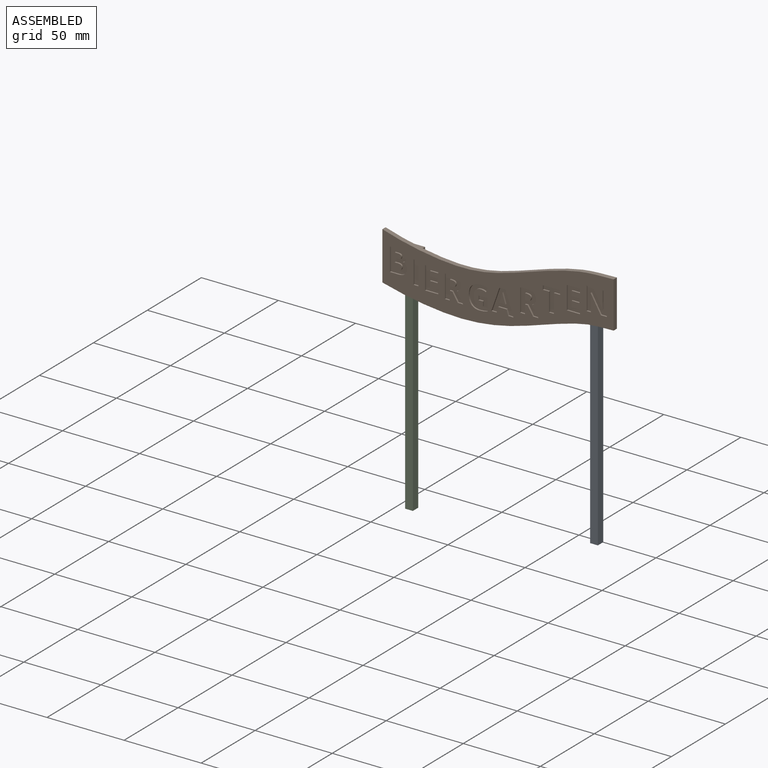
[diagram: assembled view]
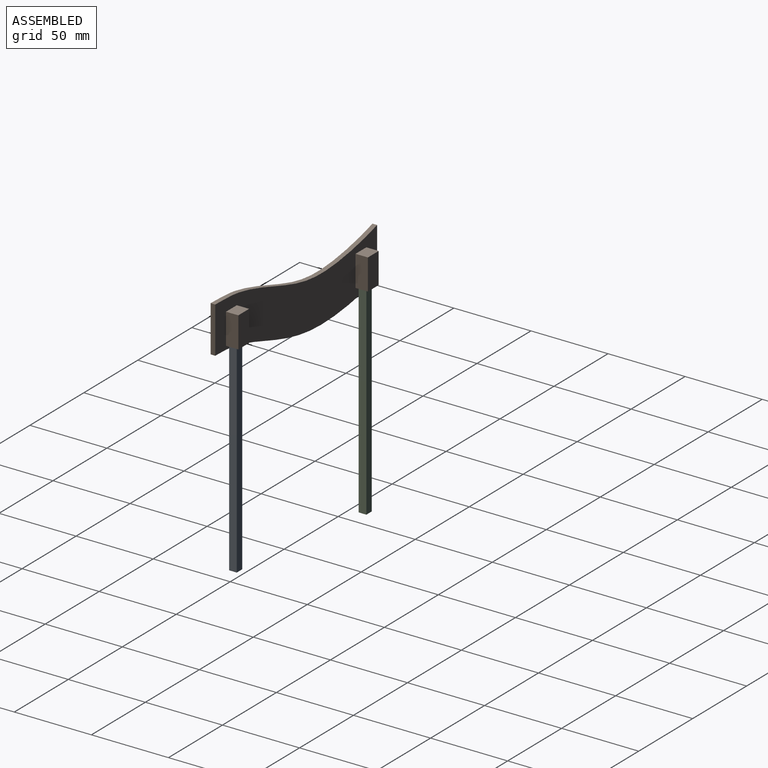
[diagram: assembled view, second angle]
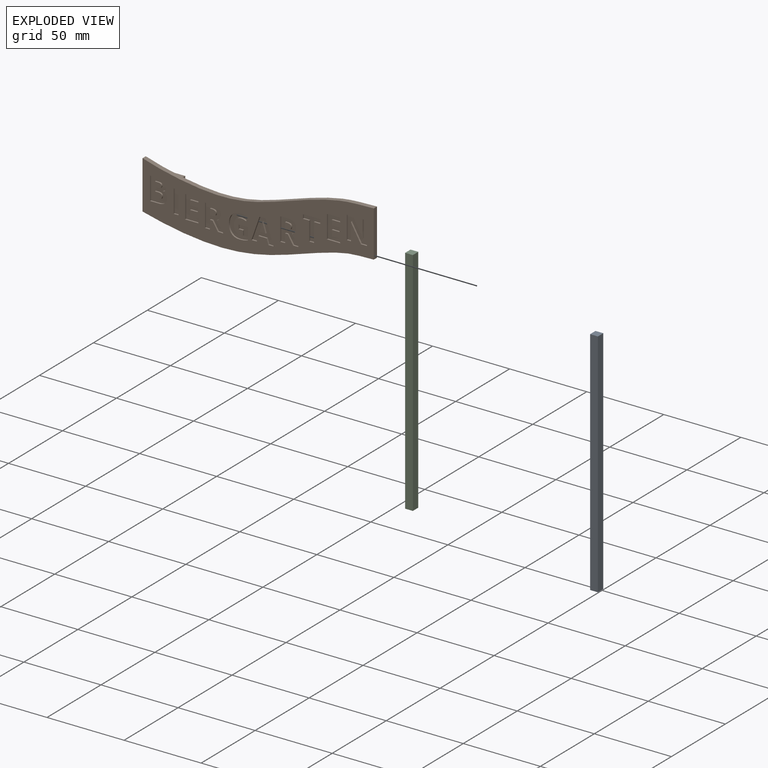
[diagram: exploded view]
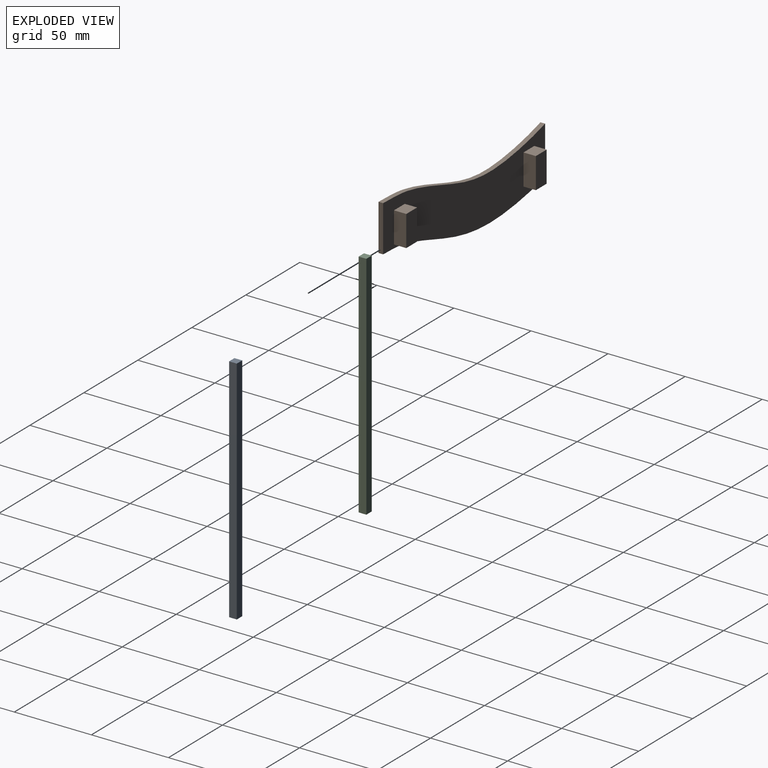
[diagram: exploded view, second angle]
ASSEMBLY  parts=3 mates=2
PART A: 6 faces, bbox 5x5x150 mm
  f0: plane 150x5mm, normal (0,1,0), area 750mm2, adj f1,f3,f4,f5
  f1: plane 150x5mm, normal (-1,0,0), area 750mm2, adj f0,f2,f4,f5
  f2: plane 150x5mm, normal (0,-1,0), area 750mm2, adj f1,f3,f4,f5
  f3: plane 150x5mm, normal (1,0,0), area 750mm2, adj f0,f2,f4,f5
  f4: plane 5x5mm, normal (0,0,1), area 25mm2, adj f0,f1,f2,f3
  f5: plane 5x5mm, normal (0,0,-1), area 25mm2, adj f0,f1,f2,f3
PART B: 183 faces, bbox 150x11x49.4 mm
  f0: plane 10x8mm, normal (0,0,-1), area 49.7mm2, adj f7,f168,f169,f170,f180,f181,f182
  f1: plane 10x8mm, normal (0,0,-1), area 49.7mm2, adj f7,f172,f173,f174,f176,f177,f178
  f2: plane 150x49.44mm, normal (0,-1,0), area 3565.7mm2, adj f3,f4,f5,f6,f8,f9,f10,f11
  f3: extruded ~150x19.32mm, area 460mm2, adj f2,f4,f6,f7
  f4: plane 31.26x3mm, normal (-1,0,0), area 93.8mm2, adj f2,f3,f5,f7
  f5: extruded ~150x19.32mm, area 458.9mm2, adj f2,f4,f6,f7
  f6: plane 30.02x3mm, normal (1,0,0), area 90.1mm2, adj f2,f3,f5,f7
  f7: plane 150x49.44mm, normal (0,1,0), area 4389mm2, adj f0,f1,f3,f4,f5,f6,f167,f168
  f8: plane 5.9x1mm, normal (0,0,-1), area 5.9mm2, adj f2,f9,f26,f27
  f9: plane 2.63x1mm, normal (1,0,0), area 2.6mm2, adj f2,f8,f10,f27
  f10: plane 2.82x1mm, normal (0,0,1), area 2.8mm2, adj f2,f9,f11,f27
  f11: plane 3.1x1mm, normal (1,0,0), area 3.1mm2, adj f2,f10,f12,f27
  f12: extruded ~2.01x1mm, area 2mm2, adj f2,f11,f13,f27
  f13: extruded ~2.88x1.28mm, area 3.3mm2, adj f2,f12,f14,f27
  f14: extruded ~3.7x1mm, area 3.9mm2, adj f2,f13,f15,f27
  f15: extruded ~3.69x1.23mm, area 4mm2, adj f2,f14,f16,f27
  f16: extruded ~3.27x1.37mm, area 3.7mm2, adj f2,f15,f17,f27
  f17: extruded ~3.39x1mm, area 3.5mm2, adj f2,f16,f18,f27
  f18: plane 2.52x1.05mm, normal (-0.92,0,0.38), area 2.7mm2, adj f2,f17,f19,f27
  f19: extruded ~4.42x1mm, area 4.5mm2, adj f2,f18,f20,f27
  f20: extruded ~5.71x2.01mm, area 6.2mm2, adj f2,f19,f21,f27
  f21: extruded ~5.61x2.06mm, area 6.1mm2, adj f2,f20,f22,f27
  f22: extruded ~5.68x1.78mm, area 6.1mm2, adj f2,f21,f23,f27
  f23: extruded ~5.14x1.98mm, area 5.7mm2, adj f2,f22,f24,f27
  f24: extruded ~2.59x1mm, area 2.6mm2, adj f2,f23,f25,f27
  f25: extruded ~2.7x1mm, area 2.8mm2, adj f2,f24,f26,f27
  f26: plane 7.71x1mm, normal (-1,0,0), area 7.7mm2, adj f2,f8,f25,f27
  f27: plane 15.29x12.21mm, normal (0,-1,0), area 107.8mm2, adj f8,f9,f10,f11,f12,f13,f14,f15
  f28: plane 5.71x1mm, normal (-1,0,0), area 5.7mm2, adj f2,f29,f46,f47
  f29: plane 1.68x1mm, normal (0,0,1), area 1.7mm2, adj f2,f28,f30,f47
  f30: plane 5.71x3.55mm, normal (0.85,0,0.53), area 6.7mm2, adj f2,f29,f31,f47
  f31: plane 3.5x1mm, normal (0,0,1), area 3.5mm2, adj f2,f30,f32,f47
  f32: extruded ~6.48x4.38mm, area 7.8mm2, adj f2,f31,f33,f47
  f33: extruded ~2.05x1.6mm, area 2.6mm2, adj f2,f32,f34,f47
  f34: extruded ~2.33x1mm, area 2.5mm2, adj f2,f33,f35,f47
  f35: extruded ~3.35x1.45mm, area 3.8mm2, adj f2,f34,f36,f47
  f36: extruded ~4.49x1.1mm, area 4.7mm2, adj f2,f35,f37,f47
  f37: plane 4.33x1mm, normal (0,0,-1), area 4.3mm2, adj f2,f36,f38,f47
  f38: plane 14.87x1mm, normal (1,0,0), area 14.9mm2, adj f2,f37,f46,f47
  f39: plane 1.02x1mm, normal (0,0,-1), area 1mm2, adj f40,f45,f47,f48
  f40: plane 4.02x1mm, normal (-1,0,0), area 4mm2, adj f39,f41,f47,f48
  f41: plane 1x0.96mm, normal (0,0,1), area 1mm2, adj f40,f42,f47,f48
  f42: extruded ~2.25x1mm, area 2.3mm2, adj f41,f43,f47,f48
  f43: extruded ~1.51x1mm, area 1.8mm2, adj f42,f44,f47,f48
  f44: extruded ~1.57x1mm, area 1.8mm2, adj f43,f45,f47,f48
  f45: extruded ~2.21x1mm, area 2.3mm2, adj f39,f44,f47,f48
  f46: plane 3.15x1mm, normal (0,0,1), area 3.2mm2, adj f2,f28,f38,f47
  f47: plane 14.87x11.88mm, normal (0,-1,0), area 108mm2, adj f28,f29,f30,f31,f32,f33,f34,f35
  f48: plane 4.02x3.94mm, normal (0,-1,0), area 14mm2, adj f39,f40,f41,f42,f43,f44,f45
  f49: plane 8.56x1mm, normal (0,0,1), area 8.6mm2, adj f2,f50,f60,f61
  f50: plane 2.6x1mm, normal (-1,0,0), area 2.6mm2, adj f2,f49,f51,f61
  f51: plane 5.41x1mm, normal (0,0,-1), area 5.4mm2, adj f2,f50,f52,f61
  f52: plane 3.83x1mm, normal (-1,0,0), area 3.8mm2, adj f2,f51,f53,f61
  f53: plane 5.04x1mm, normal (0,0,1), area 5mm2, adj f2,f52,f54,f61
  f54: plane 2.58x1mm, normal (-1,0,0), area 2.6mm2, adj f2,f53,f55,f61
  f55: plane 5.04x1mm, normal (0,0,-1), area 5mm2, adj f2,f54,f56,f61
  f56: plane 3.27x1mm, normal (-1,0,0), area 3.3mm2, adj f2,f55,f57,f61
  f57: plane 5.41x1mm, normal (0,0,1), area 5.4mm2, adj f2,f56,f58,f61
  f58: plane 2.58x1mm, normal (-1,0,0), area 2.6mm2, adj f2,f57,f59,f61
  f59: plane 8.56x1mm, normal (0,0,-1), area 8.6mm2, adj f2,f58,f60,f61
  f60: plane 14.87x1mm, normal (1,0,0), area 14.9mm2, adj f2,f49,f59,f61
  f61: plane 14.87x8.56mm, normal (0,-1,0), area 88mm2, adj f49,f50,f51,f52,f53,f54,f55,f56
  f62: plane 14.87x1mm, normal (1,0,0), area 14.9mm2, adj f2,f63,f65,f66
  f63: plane 3.15x1mm, normal (0,0,1), area 3.2mm2, adj f2,f62,f64,f66
  f64: plane 14.87x1mm, normal (-1,0,0), area 14.9mm2, adj f2,f63,f65,f66
  f65: plane 3.15x1mm, normal (0,0,-1), area 3.2mm2, adj f2,f62,f64,f66
  f66: plane 14.87x3.15mm, normal (0,-1,0), area 46.9mm2, adj f62,f63,f64,f65
  f67: plane 3.88x1mm, normal (-1,0,0), area 3.9mm2, adj f68,f91,f92,f165
  f68: plane 1.95x1mm, normal (0,0,1), area 2mm2, adj f67,f69,f92,f165
  f69: extruded ~2.64x1.85mm, area 3.7mm2, adj f68,f70,f92,f165
  f70: extruded ~1.53x1mm, area 1.7mm2, adj f69,f71,f92,f165
  f71: extruded ~1.92x1mm, area 2mm2, adj f70,f91,f92,f165
  f72: plane 1.83x1mm, normal (0,0,-1), area 1.8mm2, adj f73,f89,f92,f93
  f73: plane 3.31x1mm, normal (-1,0,0), area 3.3mm2, adj f72,f74,f92,f93
  f74: plane 1.66x1mm, normal (0,0,1), area 1.7mm2, adj f73,f75,f92,f93
  f75: extruded ~1.98x1mm, area 2mm2, adj f74,f76,f92,f93
  f76: extruded ~1.23x1mm, area 1.4mm2, adj f75,f77,f92,f93
  f77: extruded ~1.31x1mm, area 1.5mm2, adj f76,f89,f92,f93
  f78: plane 4.63x1mm, normal (0,0,-1), area 4.6mm2, adj f2,f79,f90,f92
  f79: plane 14.87x1mm, normal (1,0,0), area 14.9mm2, adj f2,f78,f80,f92
  f80: plane 5.56x1mm, normal (0,0,1), area 5.6mm2, adj f2,f79,f81,f92
  f81: extruded ~3.99x1.14mm, area 4.2mm2, adj f2,f80,f82,f92
  f82: extruded ~3.17x1.47mm, area 3.6mm2, adj f2,f81,f83,f92
  f83: extruded ~2.3x1mm, area 2.4mm2, adj f2,f82,f84,f92
  f84: extruded ~2.04x1.18mm, area 2.4mm2, adj f2,f83,f85,f92
  f85: plane 1x0.1mm, normal (-1,0,0), area 0.1mm2, adj f2,f84,f86,f92
  f86: extruded ~1.66x1.03mm, area 2mm2, adj f2,f85,f87,f92
  f87: extruded ~2.19x1mm, area 2.3mm2, adj f2,f86,f88,f92
  f88: extruded ~2.86x1.43mm, area 3.4mm2, adj f2,f87,f90,f92
  f89: extruded ~1.86x1mm, area 1.9mm2, adj f72,f77,f92,f93
  f90: extruded ~4.59x1mm, area 4.7mm2, adj f2,f78,f88,f92
  f91: plane 2.05x1mm, normal (0,0,-1), area 2.1mm2, adj f67,f71,f92,f165
  f92: plane 14.87x11.03mm, normal (0,-1,0), area 120.6mm2, adj f67,f68,f69,f70,f71,f72,f73,f74
  f93: plane 4.26x3.31mm, normal (0,-1,0), area 12.8mm2, adj f72,f73,f74,f75,f76,f77,f89
  f94: extruded ~5.44x1.68mm, area 5.7mm2, adj f95,f105,f106,f166
  f95: plane 3.87x1mm, normal (0,0,-1), area 3.9mm2, adj f94,f96,f106,f166
  f96: extruded ~6.44x1.92mm, area 6.7mm2, adj f95,f105,f106,f166
  f97: plane 3.54x1.08mm, normal (0.96,0,0.29), area 3.7mm2, adj f2,f98,f104,f106
  f98: plane 3.4x1mm, normal (0,0,1), area 3.4mm2, adj f2,f97,f99,f106
  f99: plane 14.94x5.27mm, normal (-0.94,0,-0.33), area 15.8mm2, adj f2,f98,f100,f106
  f100: plane 3.85x1mm, normal (0,0,-1), area 3.9mm2, adj f2,f99,f101,f106
  f101: plane 14.94x5.25mm, normal (0.94,0,-0.33), area 15.8mm2, adj f2,f100,f102,f106
  f102: plane 3.4x1mm, normal (0,0,1), area 3.4mm2, adj f2,f101,f103,f106
  f103: plane 3.54x1.08mm, normal (-0.96,0,0.29), area 3.7mm2, adj f2,f102,f104,f106
  f104: plane 5.42x1mm, normal (0,0,1), area 5.4mm2, adj f2,f97,f103,f106
  f105: extruded ~1x1mm, area 1mm2, adj f94,f96,f106,f166
  f106: plane 14.94x14.38mm, normal (0,-1,0), area 100.9mm2, adj f94,f95,f96,f97,f98,f99,f100,f101
  f107: plane 5.71x1mm, normal (-1,0,0), area 5.7mm2, adj f2,f108,f125,f126
  f108: plane 1.68x1mm, normal (0,0,1), area 1.7mm2, adj f2,f107,f109,f126
  f109: plane 5.71x3.55mm, normal (0.85,0,0.53), area 6.7mm2, adj f2,f108,f110,f126
  f110: plane 3.5x1mm, normal (0,0,1), area 3.5mm2, adj f2,f109,f111,f126
  f111: extruded ~6.48x4.38mm, area 7.8mm2, adj f2,f110,f112,f126
  f112: extruded ~2.05x1.6mm, area 2.6mm2, adj f2,f111,f113,f126
  f113: extruded ~2.33x1mm, area 2.5mm2, adj f2,f112,f114,f126
  f114: extruded ~3.35x1.45mm, area 3.8mm2, adj f2,f113,f115,f126
  f115: extruded ~4.49x1.1mm, area 4.7mm2, adj f2,f114,f116,f126
  f116: plane 4.33x1mm, normal (0,0,-1), area 4.3mm2, adj f2,f115,f117,f126
  f117: plane 14.87x1mm, normal (1,0,0), area 14.9mm2, adj f2,f116,f125,f126
  f118: plane 1.02x1mm, normal (0,0,-1), area 1mm2, adj f119,f124,f126,f127
  f119: plane 4.02x1mm, normal (-1,0,0), area 4mm2, adj f118,f120,f126,f127
  f120: plane 1x0.96mm, normal (0,0,1), area 1mm2, adj f119,f121,f126,f127
  f121: extruded ~2.25x1mm, area 2.3mm2, adj f120,f122,f126,f127
  f122: extruded ~1.51x1mm, area 1.8mm2, adj f121,f123,f126,f127
  f123: extruded ~1.57x1mm, area 1.8mm2, adj f122,f124,f126,f127
  f124: extruded ~2.21x1mm, area 2.3mm2, adj f118,f123,f126,f127
  f125: plane 3.15x1mm, normal (0,0,1), area 3.2mm2, adj f2,f107,f117,f126
  f126: plane 14.87x11.88mm, normal (0,-1,0), area 108mm2, adj f107,f108,f109,f110,f111,f112,f113,f114
  f127: plane 4.02x3.94mm, normal (0,-1,0), area 14mm2, adj f118,f119,f120,f121,f122,f123,f124
  f128: plane 3.15x1mm, normal (0,0,1), area 3.2mm2, adj f2,f129,f135,f136
  f129: plane 12.25x1mm, normal (-1,0,0), area 12.2mm2, adj f2,f128,f130,f136
  f130: plane 4.04x1mm, normal (0,0,1), area 4mm2, adj f2,f129,f131,f136
  f131: plane 2.62x1mm, normal (-1,0,0), area 2.6mm2, adj f2,f130,f132,f136
  f132: plane 11.23x1mm, normal (0,0,-1), area 11.2mm2, adj f2,f131,f133,f136
  f133: plane 2.62x1mm, normal (1,0,0), area 2.6mm2, adj f2,f132,f134,f136
  f134: plane 4.04x1mm, normal (0,0,1), area 4mm2, adj f2,f133,f135,f136
  f135: plane 12.25x1mm, normal (1,0,0), area 12.2mm2, adj f2,f128,f134,f136
  f136: plane 14.87x11.23mm, normal (0,-1,0), area 68.1mm2, adj f128,f129,f130,f131,f132,f133,f134,f135
  f137: plane 8.56x1mm, normal (0,0,1), area 8.6mm2, adj f2,f138,f148,f149
  f138: plane 2.6x1mm, normal (-1,0,0), area 2.6mm2, adj f2,f137,f139,f149
  f139: plane 5.41x1mm, normal (0,0,-1), area 5.4mm2, adj f2,f138,f140,f149
  f140: plane 3.83x1mm, normal (-1,0,0), area 3.8mm2, adj f2,f139,f141,f149
  f141: plane 5.04x1mm, normal (0,0,1), area 5mm2, adj f2,f140,f142,f149
  f142: plane 2.58x1mm, normal (-1,0,0), area 2.6mm2, adj f2,f141,f143,f149
  f143: plane 5.04x1mm, normal (0,0,-1), area 5mm2, adj f2,f142,f144,f149
  f144: plane 3.27x1mm, normal (-1,0,0), area 3.3mm2, adj f2,f143,f145,f149
  f145: plane 5.41x1mm, normal (0,0,1), area 5.4mm2, adj f2,f144,f146,f149
  f146: plane 2.58x1mm, normal (-1,0,0), area 2.6mm2, adj f2,f145,f147,f149
  f147: plane 8.56x1mm, normal (0,0,-1), area 8.6mm2, adj f2,f146,f148,f149
  f148: plane 14.87x1mm, normal (1,0,0), area 14.9mm2, adj f2,f137,f147,f149
  f149: plane 14.87x8.56mm, normal (0,-1,0), area 88mm2, adj f137,f138,f139,f140,f141,f142,f143,f144
  f150: plane 4.01x1mm, normal (0,0,1), area 4mm2, adj f2,f151,f163,f164
  f151: plane 14.87x1mm, normal (-1,0,0), area 14.9mm2, adj f2,f150,f152,f164
  f152: plane 2.84x1mm, normal (0,0,-1), area 2.8mm2, adj f2,f151,f153,f164
  f153: plane 7.04x1mm, normal (1,0,0), area 7mm2, adj f2,f152,f154,f164
  f154: extruded ~4.1x1mm, area 4.1mm2, adj f2,f153,f155,f164
  f155: plane 1x0.07mm, normal (0,0,-1), area 0.1mm2, adj f2,f154,f156,f164
  f156: plane 11.14x6.46mm, normal (-0.87,0,-0.5), area 12.9mm2, adj f2,f155,f157,f164
  f157: plane 3.98x1mm, normal (0,0,-1), area 4mm2, adj f2,f156,f158,f164
  f158: plane 14.87x1mm, normal (1,0,0), area 14.9mm2, adj f2,f157,f159,f164
  f159: plane 2.82x1mm, normal (0,0,1), area 2.8mm2, adj f2,f158,f160,f164
  f160: plane 7x1mm, normal (-1,0,0), area 7mm2, adj f2,f159,f161,f164
  f161: extruded ~4.25x1mm, area 4.3mm2, adj f2,f160,f162,f164
  f162: plane 1x0.09mm, normal (0,0,1), area 0.1mm2, adj f2,f161,f163,f164
  f163: plane 11.25x6.47mm, normal (0.87,0,0.5), area 13mm2, adj f2,f150,f162,f164
  f164: plane 14.87x13.19mm, normal (0,-1,0), area 125.3mm2, adj f150,f151,f152,f153,f154,f155,f156,f157
  f165: plane 4.6x3.88mm, normal (0,-1,0), area 16.2mm2, adj f67,f68,f69,f70,f71,f91
  f166: plane 6.44x3.87mm, normal (0,-1,0), area 12.2mm2, adj f94,f95,f96,f105
  f167: plane 10x8mm, normal (0,0,1), area 80mm2, adj f7,f168,f169,f170
  f168: plane 20x8mm, normal (1,0,0), area 160mm2, adj f0,f7,f167,f170
  f169: plane 20x8mm, normal (-1,0,0), area 160mm2, adj f0,f7,f167,f170
  f170: plane 20x10mm, normal (0,1,0), area 200mm2, adj f0,f167,f168,f169
  f171: plane 10x8mm, normal (0,0,1), area 80mm2, adj f7,f172,f173,f174
  f172: plane 20x8mm, normal (1,0,0), area 160mm2, adj f1,f7,f171,f174
  f173: plane 20x8mm, normal (-1,0,0), area 160mm2, adj f1,f7,f171,f174
  f174: plane 20x10mm, normal (0,1,0), area 200mm2, adj f1,f171,f172,f173
  f175: plane 5.5x5.5mm, normal (0,0,-1), area 30.3mm2, adj f7,f176,f177,f178
  f176: plane 17.5x5.5mm, normal (-1,0,0), area 96.3mm2, adj f1,f7,f175,f177
  f177: plane 17.5x5.5mm, normal (0,-1,0), area 96.3mm2, adj f1,f175,f176,f178
  f178: plane 17.5x5.5mm, normal (1,0,0), area 96.3mm2, adj f1,f7,f175,f177
  f179: plane 5.5x5.5mm, normal (0,0,-1), area 30.3mm2, adj f7,f180,f181,f182
  f180: plane 17.5x5.5mm, normal (0,-1,0), area 96.2mm2, adj f0,f179,f181,f182
  f181: plane 17.5x5.5mm, normal (-1,0,0), area 96.2mm2, adj f0,f7,f179,f180
  f182: plane 17.5x5.5mm, normal (1,0,0), area 96.2mm2, adj f0,f7,f179,f180
PART C: same geometry as A
PLACE A t=(112.25,40.17,-141.01)mm
PLACE B t=(-20.58,4.39,8.86)mm
PLACE C t=(-7.75,40.17,-152.9)mm
MATE fastened C.f4 <-> B.f175  axis (0,0,1) through (-43.46,7.14,-2.9)mm
MATE fastened A.f4 <-> B.f179  axis (0,0,1) through (76.54,7.14,8.99)mm
